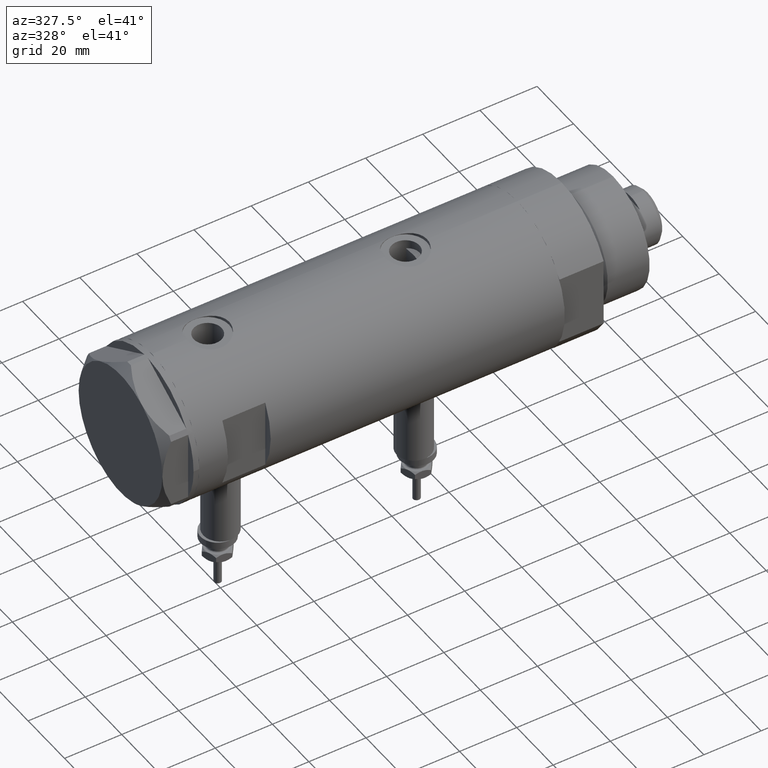
[diagram: clean part render]
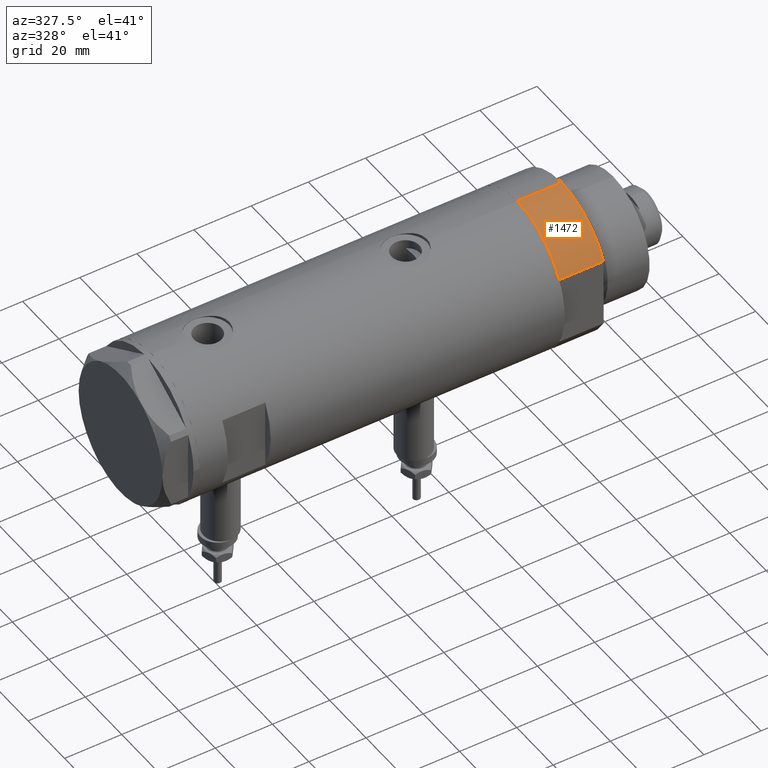
[diagram: same view with one face highlighted and labeled with its STEP entity id]
A machine part, auxiliary view. The second image highlights one B-rep face of the part: STEP entity #1472.
In plain terms, the highlighted cylindrical surface (partial cylindrical patch) has radius 26 mm, axis along (-1, -0, 0).
Its self-contained STEP definition (entity closure, byte-faithful):
#10 = CARTESIAN_POINT ( 'NONE',  ( -26.00000000000000355, 0.000000000000000000, 15.50000000000000000 ) ) ;
#90 = CARTESIAN_POINT ( 'NONE',  ( -26.00000000000000355, 0.000000000000000000, 0.000000000000000000 ) ) ;
#218 = DIRECTION ( 'NONE',  ( 1.000000000000000000, 0.000000000000000000, 0.000000000000000000 ) ) ;
#307 = ORIENTED_EDGE ( 'NONE', *, *, #2016, .T. ) ;
#324 = ORIENTED_EDGE ( 'NONE', *, *, #4794, .T. ) ;
#451 = EDGE_CURVE ( 'NONE', #1061, #1560, #3859, .T. ) ;
#464 = ORIENTED_EDGE ( 'NONE', *, *, #451, .T. ) ;
#470 = DIRECTION ( 'NONE',  ( -0.000000000000000000, -0.000000000000000000, -1.000000000000000000 ) ) ;
#1061 = VERTEX_POINT ( 'NONE', #6253 ) ;
#1086 = VECTOR ( 'NONE', #5657, 1000.000000000000000 ) ;
#1205 = AXIS2_PLACEMENT_3D ( 'NONE', #3205, #4587, #218 ) ;
#1241 = VERTEX_POINT ( 'NONE', #3501 ) ;
#1337 = CYLINDRICAL_SURFACE ( 'NONE', #1790, 26.00000000000000355 ) ;
#1353 = VERTEX_POINT ( 'NONE', #5781 ) ;
#1472 = ADVANCED_FACE ( 'NONE', ( #3750 ), #1337, .T. ) ;
#1508 = CIRCLE ( 'NONE', #1205, 26.00000000000000355 ) ;
#1560 = VERTEX_POINT ( 'NONE', #90 ) ;
#1700 = ORIENTED_EDGE ( 'NONE', *, *, #5058, .F. ) ;
#1790 = AXIS2_PLACEMENT_3D ( 'NONE', #4841, #470, #2347 ) ;
#1824 = LINE ( 'NONE', #6080, #1086 ) ;
#2016 = EDGE_CURVE ( 'NONE', #1353, #1241, #1824, .T. ) ;
#2347 = DIRECTION ( 'NONE',  ( -1.000000000000000000, 0.000000000000000000, 0.000000000000000000 ) ) ;
#2533 = CARTESIAN_POINT ( 'NONE',  ( 0.000000000000000000, 0.000000000000000000, 0.000000000000000000 ) ) ;
#3205 = CARTESIAN_POINT ( 'NONE',  ( 0.000000000000000000, 0.000000000000000000, 15.50000000000000000 ) ) ;
#3501 = CARTESIAN_POINT ( 'NONE',  ( -12.12435565298215323, -22.99999999999999645, 15.50000000000000000 ) ) ;
#3521 = DIRECTION ( 'NONE',  ( 0.000000000000000000, 0.000000000000000000, 1.000000000000000000 ) ) ;
#3611 = EDGE_LOOP ( 'NONE', ( #1700, #464, #324, #307 ) ) ;
#3750 = FACE_OUTER_BOUND ( 'NONE', #3611, .T. ) ;
#3859 = LINE ( 'NONE', #10, #4018 ) ;
#4018 = VECTOR ( 'NONE', #5850, 1000.000000000000000 ) ;
#4420 = DIRECTION ( 'NONE',  ( 1.000000000000000000, 0.000000000000000000, 0.000000000000000000 ) ) ;
#4585 = CIRCLE ( 'NONE', #5097, 26.00000000000000355 ) ;
#4587 = DIRECTION ( 'NONE',  ( 0.000000000000000000, 0.000000000000000000, 1.000000000000000000 ) ) ;
#4794 = EDGE_CURVE ( 'NONE', #1560, #1353, #4585, .T. ) ;
#4841 = CARTESIAN_POINT ( 'NONE',  ( 0.000000000000000000, 0.000000000000000000, 15.50000000000000000 ) ) ;
#5058 = EDGE_CURVE ( 'NONE', #1061, #1241, #1508, .T. ) ;
#5097 = AXIS2_PLACEMENT_3D ( 'NONE', #2533, #3521, #4420 ) ;
#5657 = DIRECTION ( 'NONE',  ( -0.000000000000000000, -0.000000000000000000, 1.000000000000000000 ) ) ;
#5781 = CARTESIAN_POINT ( 'NONE',  ( -12.12435565298215501, -22.99999999999999645, 0.000000000000000000 ) ) ;
#5850 = DIRECTION ( 'NONE',  ( -0.000000000000000000, -0.000000000000000000, -1.000000000000000000 ) ) ;
#6080 = CARTESIAN_POINT ( 'NONE',  ( -12.12435565298215145, -22.99999999999999645, 0.000000000000000000 ) ) ;
#6253 = CARTESIAN_POINT ( 'NONE',  ( -26.00000000000000355, 0.000000000000000000, 15.50000000000000000 ) ) ;